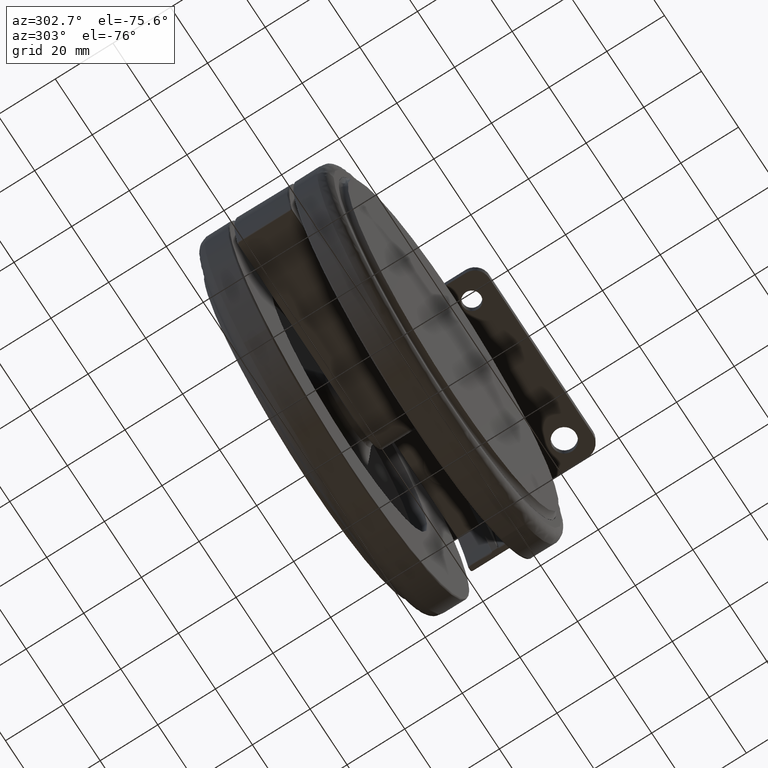
[diagram: clean part render]
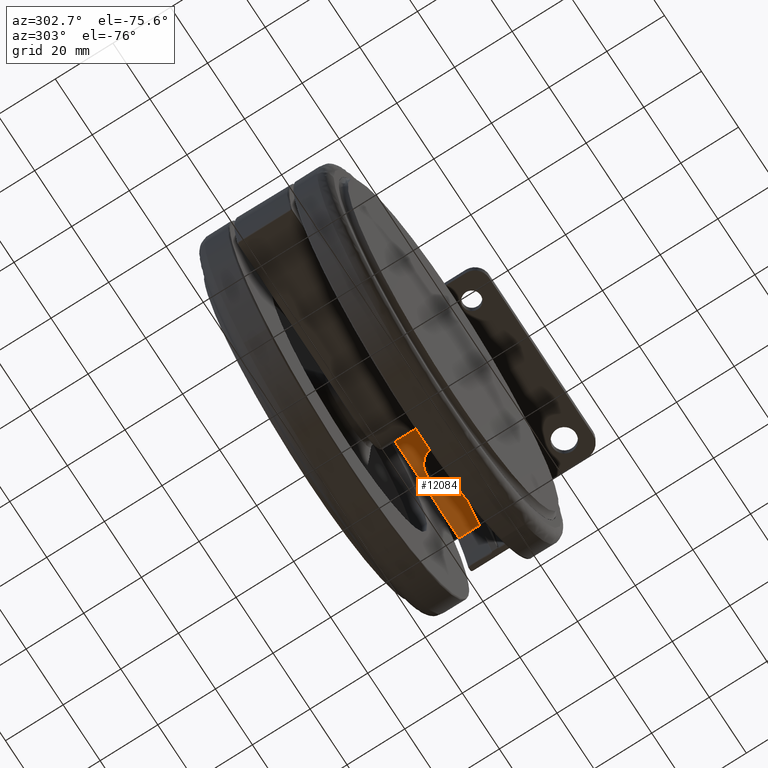
[diagram: same view with one face highlighted and labeled with its STEP entity id]
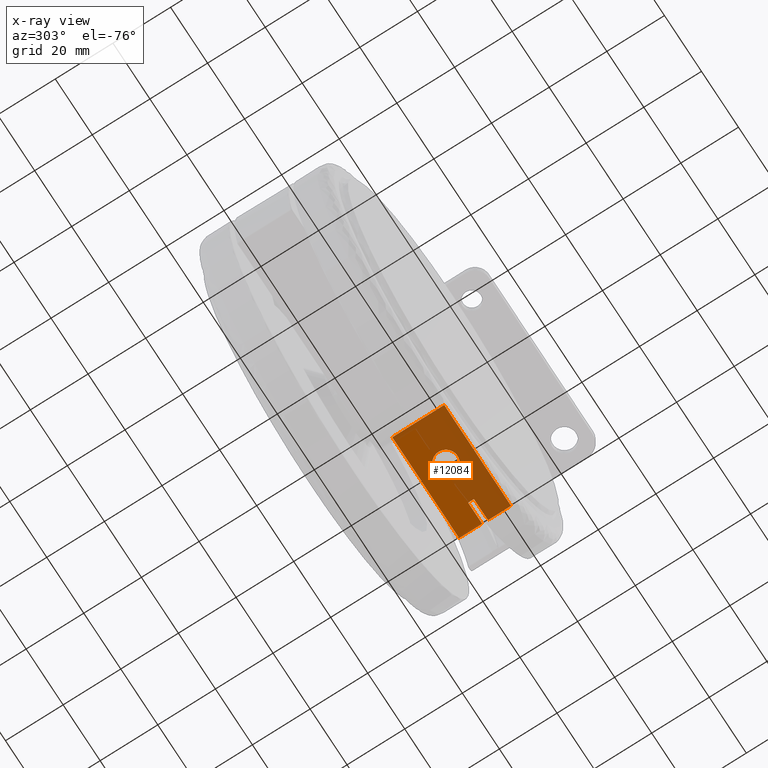
[diagram: x-ray of the same camera — body ghosted, the highlighted face saturated]
A machine part, auxiliary view. The second image highlights one B-rep face of the part: STEP entity #12084.
The next image is the same camera in x-ray: the body ghosted, the highlighted face saturated — about 57% of this face is hidden behind the body in this view.
In plain terms, the highlighted face is a freeform B-spline surface patch.
Its self-contained STEP definition (entity closure, byte-faithful):
#7816=CARTESIAN_POINT('',(0.244194159057027,3.992539193631330,-42.799999999999997));
#7817=VERTEX_POINT('',#7816);
#7823=CARTESIAN_POINT('',(3.999999999999773,0.0,-42.799999999999997));
#7824=VERTEX_POINT('',#7823);
#7825=CARTESIAN_POINT('',(3.999999999999773,0.0,-42.799999999999997));
#7826=CARTESIAN_POINT('',(3.999999999999773,3.762824266756145,-42.799999999999990));
#7827=CARTESIAN_POINT('',(0.244194159057028,3.992539193631331,-42.799999999999990));
#7835=(BOUNDED_CURVE()B_SPLINE_CURVE(2,(#7825,#7826,#7827),.UNSPECIFIED.,.F.,.U.)B_SPLINE_CURVE_WITH_KNOTS((3,3),(0.500000000000000,0.739332962202302),.UNSPECIFIED.)CURVE()GEOMETRIC_REPRESENTATION_ITEM()RATIONAL_B_SPLINE_CURVE((1.0,0.719603993329637,0.976072041588190))REPRESENTATION_ITEM(''));
#7836=EDGE_CURVE('',#7824,#7817,#7835,.T.);
#7838=CARTESIAN_POINT('',(-0.244194159057481,-3.992539193631331,-42.799999999999997));
#7839=VERTEX_POINT('',#7838);
#7840=CARTESIAN_POINT('',(-0.244194159057481,-3.992539193631332,-42.799999999999997));
#7841=CARTESIAN_POINT('',(-0.122211053654783,-4.0,-42.799999999999990));
#7842=CARTESIAN_POINT('',(-2.273737E-013,-4.0,-42.799999999999997));
#7843=CARTESIAN_POINT('',(3.999999999999773,-4.000000000000000,-42.800000000000004));
#7844=CARTESIAN_POINT('',(3.999999999999773,0.0,-42.799999999999997));
#7852=(BOUNDED_CURVE()B_SPLINE_CURVE(2,(#7840,#7841,#7842,#7843,#7844),.UNSPECIFIED.,.F.,.U.)B_SPLINE_CURVE_WITH_KNOTS((3,2,3),(0.239332962202302,0.250000000000000,0.500000000000000),.UNSPECIFIED.)CURVE()GEOMETRIC_REPRESENTATION_ITEM()RATIONAL_B_SPLINE_CURVE((0.976072041588190,0.987502787856910,1.0,0.707106781186548,1.0))REPRESENTATION_ITEM(''));
#7853=EDGE_CURVE('',#7839,#7824,#7852,.T.);
#7883=CARTESIAN_POINT('',(-4.000000000000227,0.0,-42.799999999999997));
#7884=VERTEX_POINT('',#7883);
#7885=CARTESIAN_POINT('',(-4.000000000000227,0.0,-42.799999999999997));
#7886=CARTESIAN_POINT('',(-4.000000000000227,-3.762824266756145,-42.799999999999990));
#7887=CARTESIAN_POINT('',(-0.244194159057481,-3.992539193631332,-42.799999999999997));
#7895=(BOUNDED_CURVE()B_SPLINE_CURVE(2,(#7885,#7886,#7887),.UNSPECIFIED.,.F.,.U.)B_SPLINE_CURVE_WITH_KNOTS((3,3),(0.0,0.239332962202302),.UNSPECIFIED.)CURVE()GEOMETRIC_REPRESENTATION_ITEM()RATIONAL_B_SPLINE_CURVE((1.0,0.719603993329637,0.976072041588190))REPRESENTATION_ITEM(''));
#7896=EDGE_CURVE('',#7884,#7839,#7895,.T.);
#7898=CARTESIAN_POINT('',(0.244194159057028,3.992539193631331,-42.799999999999990));
#7899=CARTESIAN_POINT('',(0.122211053654329,4.0,-42.799999999999990));
#7900=CARTESIAN_POINT('',(-2.273737E-013,4.0,-42.799999999999997));
#7901=CARTESIAN_POINT('',(-4.000000000000227,4.000000000000000,-42.800000000000004));
#7902=CARTESIAN_POINT('',(-4.000000000000227,0.0,-42.799999999999997));
#7910=(BOUNDED_CURVE()B_SPLINE_CURVE(2,(#7898,#7899,#7900,#7901,#7902),.UNSPECIFIED.,.F.,.U.)B_SPLINE_CURVE_WITH_KNOTS((3,2,3),(0.739332962202302,0.750000000000000,1.0),.UNSPECIFIED.)CURVE()GEOMETRIC_REPRESENTATION_ITEM()RATIONAL_B_SPLINE_CURVE((0.976072041588190,0.987502787856910,1.0,0.707106781186548,1.0))REPRESENTATION_ITEM(''));
#7911=EDGE_CURVE('',#7817,#7884,#7910,.T.);
#10958=CARTESIAN_POINT('',(21.083063397072198,1.499999999999946,-42.799999999999997));
#10959=VERTEX_POINT('',#10958);
#10960=CARTESIAN_POINT('',(20.520806910562950,0.999999999999972,-42.799999999999997));
#10961=VERTEX_POINT('',#10960);
#10962=CARTESIAN_POINT('',(21.083063397072198,1.499999999999946,-42.799999999999997));
#10963=CARTESIAN_POINT('',(21.083063397072209,1.464861576974486,-42.799999999999997));
#10964=CARTESIAN_POINT('',(21.078949189203659,1.430442943900778,-42.800000000000011));
#10965=CARTESIAN_POINT('',(21.062943870011480,1.362966264564131,-42.799999999999983));
#10966=CARTESIAN_POINT('',(21.050835716989809,1.329648018057382,-42.799999999999997));
#10967=CARTESIAN_POINT('',(21.020069425977692,1.267443922613552,-42.799999999999997));
#10968=CARTESIAN_POINT('',(21.001341228181001,1.238125122603546,-42.799999999999997));
#10969=CARTESIAN_POINT('',(20.957627542799258,1.183289461369618,-42.799999999999997));
#10970=CARTESIAN_POINT('',(20.933281136926990,1.158546709615510,-42.799999999999997));
#10971=CARTESIAN_POINT('',(20.880074493000631,1.113911397157066,-42.799999999999997));
#10972=CARTESIAN_POINT('',(20.850956608355389,1.093930150930840,-42.799999999999997));
#10973=CARTESIAN_POINT('',(20.790366073604201,1.059981811311209,-42.799999999999997));
#10974=CARTESIAN_POINT('',(20.758726878539900,1.045820298736751,-42.799999999999997));
#10975=CARTESIAN_POINT('',(20.692861355004538,1.022911790720303,-42.799999999999997));
#10976=CARTESIAN_POINT('',(20.658833898435841,1.014289985590169,-42.799999999999997));
#10977=CARTESIAN_POINT('',(20.590452275714110,1.002880975388722,-42.799999999999997));
#10978=CARTESIAN_POINT('',(20.555843054441031,0.999999999999956,-42.799999999999997));
#10979=CARTESIAN_POINT('',(20.520806910563000,0.999999999999946,-42.799999999999997));
#10980=B_SPLINE_CURVE_WITH_KNOTS('',3,(#10962,#10963,#10964,#10965,#10966,#10967,#10968,#10969,#10970,#10971,#10972,#10973,#10974,#10975,#10976,#10977,#10978,#10979),.UNSPECIFIED.,.F.,.U.,(4,2,2,2,2,2,2,2,4),(0.0,0.125000000000000,0.250000000000000,0.375000000000000,0.500000000000000,0.625000000000000,0.750000000000000,0.875000000000000,1.0),.UNSPECIFIED.);
#10981=EDGE_CURVE('',#10959,#10961,#10980,.T.);
#11219=CARTESIAN_POINT('',(20.520806910563000,-1.0,-42.799999999999997));
#11220=VERTEX_POINT('',#11219);
#11221=CARTESIAN_POINT('',(21.083063397072198,-1.500000000000055,-42.799999999999997));
#11222=VERTEX_POINT('',#11221);
#11223=CARTESIAN_POINT('',(20.520806910563000,-1.000000000000028,-42.799999999999997));
#11224=CARTESIAN_POINT('',(20.591000604233020,-1.000000000000049,-42.800000000000011));
#11225=CARTESIAN_POINT('',(20.659305609693192,-1.011261700080838,-42.799999999999997));
#11226=CARTESIAN_POINT('',(20.791962074328062,-1.057358950225038,-42.799999999999990));
#11227=CARTESIAN_POINT('',(20.852443271706790,-1.090809505103033,-42.799999999999997));
#11228=CARTESIAN_POINT('',(20.933267785285640,-1.158496852825409,-42.799999999999997));
#11229=CARTESIAN_POINT('',(20.957574246206210,-1.183284908563247,-42.799999999999997));
#11230=CARTESIAN_POINT('',(20.989912686240508,-1.223758445751121,-42.799999999999997));
#11231=CARTESIAN_POINT('',(21.000006753240790,-1.237807177515717,-42.799999999999997));
#11232=CARTESIAN_POINT('',(21.018750499385270,-1.267079585696847,-42.800000000000011));
#11233=CARTESIAN_POINT('',(21.027449960087498,-1.282407315383544,-42.800000000000011));
#11234=CARTESIAN_POINT('',(21.050809021668861,-1.329513270904363,-42.799999999999997));
#11235=CARTESIAN_POINT('',(21.062658993124511,-1.362074697680551,-42.800000000000011));
#11236=CARTESIAN_POINT('',(21.078807755863650,-1.429545330235743,-42.799999999999997));
#11237=CARTESIAN_POINT('',(21.083063397072159,-1.464759501578868,-42.799999999999990));
#11238=CARTESIAN_POINT('',(21.083063397072149,-1.500000000000060,-42.799999999999997));
#11239=B_SPLINE_CURVE_WITH_KNOTS('',3,(#11223,#11224,#11225,#11226,#11227,#11228,#11229,#11230,#11231,#11232,#11233,#11234,#11235,#11236,#11237,#11238),.UNSPECIFIED.,.F.,.U.,(4,2,2,2,2,2,2,4),(0.0,0.249999999999998,0.499999999999996,0.624999999999995,0.687499999999994,0.749999999999993,0.874999999999996,1.0),.UNSPECIFIED.);
#11240=EDGE_CURVE('',#11220,#11222,#11239,.T.);
#11509=CARTESIAN_POINT('',(21.083063397072198,9.0,-42.799999999999997));
#11510=VERTEX_POINT('',#11509);
#11610=CARTESIAN_POINT('',(-14.999999999999799,9.0,-42.799999999999997));
#11611=VERTEX_POINT('',#11610);
#11627=CARTESIAN_POINT('',(-14.999999999999799,9.0,-42.799999999999997));
#11628=CARTESIAN_POINT('',(21.083063397072198,9.0,-42.799999999999997));
#11629=QUASI_UNIFORM_CURVE('',1,(#11627,#11628),.UNSPECIFIED.,.F.,.U.);
#11630=EDGE_CURVE('',#11611,#11510,#11629,.T.);
#11777=CARTESIAN_POINT('',(21.083063397072198,-8.999999999999901,-42.799999999999997));
#11778=VERTEX_POINT('',#11777);
#11861=CARTESIAN_POINT('',(-14.999999999999799,-8.999999999999789,-42.799999999999997));
#11862=VERTEX_POINT('',#11861);
#11876=CARTESIAN_POINT('',(21.083063397072198,-8.999999999999901,-42.799999999999997));
#11877=CARTESIAN_POINT('',(-14.999999999999799,-8.999999999999789,-42.799999999999997));
#11878=QUASI_UNIFORM_CURVE('',1,(#11876,#11877),.UNSPECIFIED.,.F.,.U.);
#11879=EDGE_CURVE('',#11778,#11862,#11878,.T.);
#11927=CARTESIAN_POINT('',(13.539830028101401,1.0,-42.799999999999997));
#11928=VERTEX_POINT('',#11927);
#11929=CARTESIAN_POINT('',(20.520806910562950,0.999999999999972,-42.799999999999997));
#11930=CARTESIAN_POINT('',(13.539830028101401,1.0,-42.799999999999997));
#11931=QUASI_UNIFORM_CURVE('',1,(#11929,#11930),.UNSPECIFIED.,.F.,.U.);
#11932=EDGE_CURVE('',#10961,#11928,#11931,.T.);
#11948=CARTESIAN_POINT('',(13.539830028101401,-1.0,-42.799999999999997));
#11949=VERTEX_POINT('',#11948);
#11956=CARTESIAN_POINT('',(20.520806910563000,-1.0,-42.799999999999997));
#11957=CARTESIAN_POINT('',(13.539830028101401,-1.0,-42.799999999999997));
#11958=QUASI_UNIFORM_CURVE('',1,(#11956,#11957),.UNSPECIFIED.,.F.,.U.);
#11959=EDGE_CURVE('',#11220,#11949,#11958,.T.);
#11976=CARTESIAN_POINT('',(13.539830028101401,-1.0,-42.799999999999997));
#11977=CARTESIAN_POINT('',(13.539830028101401,1.0,-42.799999999999997));
#11978=QUASI_UNIFORM_CURVE('',1,(#11976,#11977),.UNSPECIFIED.,.F.,.U.);
#11979=EDGE_CURVE('',#11949,#11928,#11978,.T.);
#11998=CARTESIAN_POINT('',(21.083063397072198,-1.500000000000055,-42.799999999999997));
#11999=CARTESIAN_POINT('',(21.083063397072198,-8.999999999999901,-42.799999999999997));
#12000=QUASI_UNIFORM_CURVE('',1,(#11998,#11999),.UNSPECIFIED.,.F.,.U.);
#12001=EDGE_CURVE('',#11222,#11778,#12000,.T.);
#12026=CARTESIAN_POINT('',(-14.999999999999799,9.0,-42.799999999999997));
#12027=CARTESIAN_POINT('',(-14.999999999999799,-8.999999999999789,-42.799999999999997));
#12028=QUASI_UNIFORM_CURVE('',1,(#12026,#12027),.UNSPECIFIED.,.F.,.U.);
#12029=EDGE_CURVE('',#11611,#11862,#12028,.T.);
#12052=CARTESIAN_POINT('',(21.083063397072198,9.0,-42.799999999999997));
#12053=CARTESIAN_POINT('',(21.083063397072198,1.499999999999946,-42.799999999999997));
#12054=QUASI_UNIFORM_CURVE('',1,(#12052,#12053),.UNSPECIFIED.,.F.,.U.);
#12055=EDGE_CURVE('',#11510,#10959,#12054,.T.);
#12061=CARTESIAN_POINT('',(22.885412343819969,-9.899099965112402,-42.799999999999997));
#12062=CARTESIAN_POINT('',(-16.802349914570751,-9.899099965112402,-42.799999999999997));
#12063=CARTESIAN_POINT('',(22.885412343819969,9.899100447910124,-42.799999999999997));
#12064=CARTESIAN_POINT('',(-16.802349914570751,9.899100447910124,-42.799999999999997));
#12065=B_SPLINE_SURFACE_WITH_KNOTS('',1,1,((#12061,#12063),(#12062,#12064)),.UNSPECIFIED.,.F.,.F.,.U.,(2,2),(2,2),(0.0,39.687762258390720),(0.0,19.798200413022531),.UNSPECIFIED.);
#12066=ORIENTED_EDGE('',*,*,#12055,.T.);
#12067=ORIENTED_EDGE('',*,*,#10981,.T.);
#12068=ORIENTED_EDGE('',*,*,#11932,.T.);
#12069=ORIENTED_EDGE('',*,*,#11979,.F.);
#12070=ORIENTED_EDGE('',*,*,#11959,.F.);
#12071=ORIENTED_EDGE('',*,*,#11240,.T.);
#12072=ORIENTED_EDGE('',*,*,#12001,.T.);
#12073=ORIENTED_EDGE('',*,*,#11879,.T.);
#12074=ORIENTED_EDGE('',*,*,#12029,.F.);
#12075=ORIENTED_EDGE('',*,*,#11630,.T.);
#12076=EDGE_LOOP('',(#12066,#12067,#12068,#12069,#12070,#12071,#12072,#12073,#12074,#12075));
#12077=FACE_OUTER_BOUND('',#12076,.T.);
#12078=ORIENTED_EDGE('',*,*,#7836,.T.);
#12079=ORIENTED_EDGE('',*,*,#7911,.T.);
#12080=ORIENTED_EDGE('',*,*,#7896,.T.);
#12081=ORIENTED_EDGE('',*,*,#7853,.T.);
#12082=EDGE_LOOP('',(#12078,#12079,#12080,#12081));
#12083=FACE_BOUND('',#12082,.T.);
#12084=ADVANCED_FACE('',(#12077,#12083),#12065,.T.);